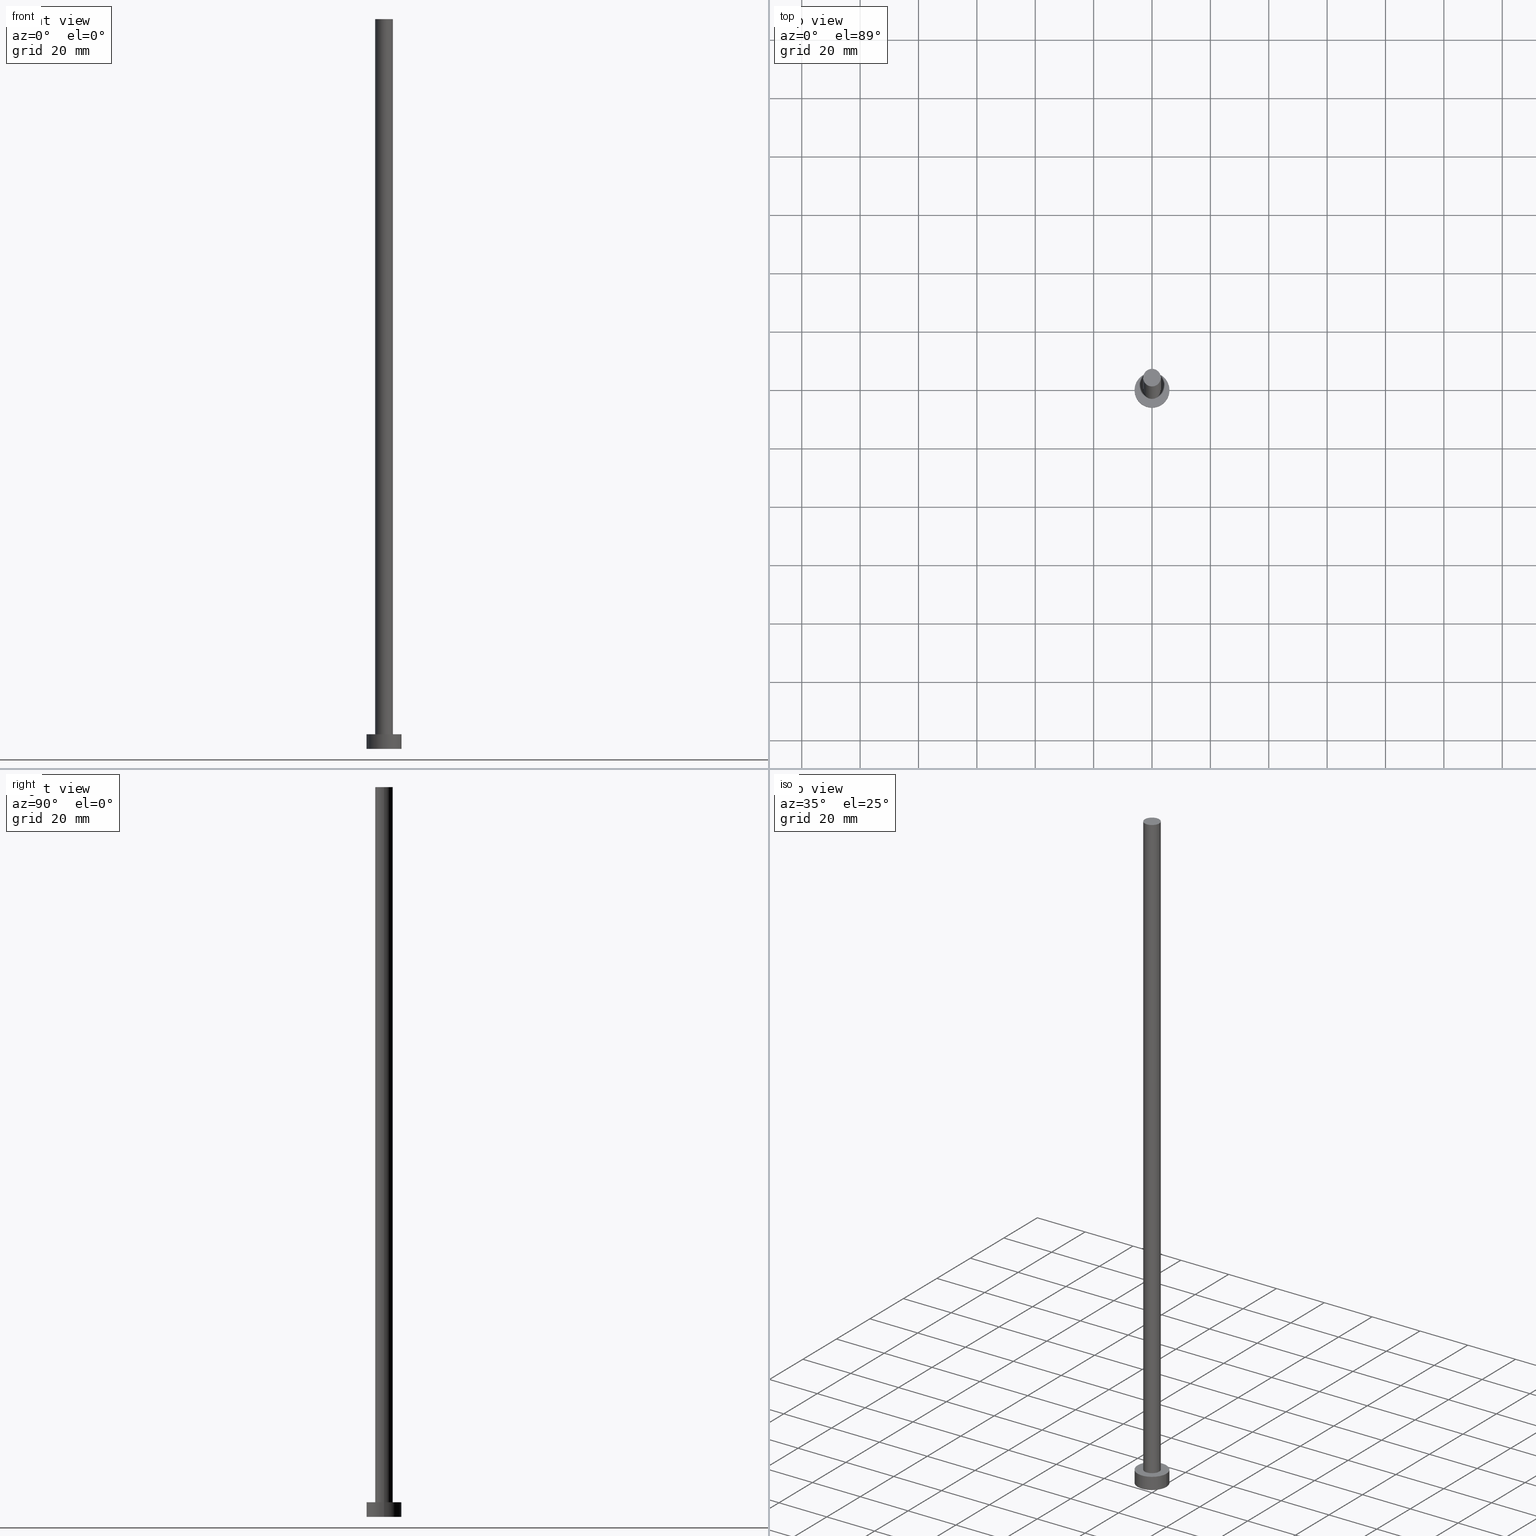
[diagram: canonical four-view strip — front | top / right | iso, engineering-drawing reading convention]
A machine part, canonical four-view strip (front | top / right | iso — engineering-drawing reading convention). The complete STEP part file that produces these views, byte-faithful:
ISO-10303-21;
HEADER;
FILE_DESCRIPTION (( 'STEP AP203' ),
    '1' );
FILE_NAME ('2932.STEP',
    '2023-05-24T12:27:54',
    ( '' ),
    ( '' ),
    'SwSTEP 2.0',
    'SolidWorks 2019',
    '' );
FILE_SCHEMA (( 'CONFIG_CONTROL_DESIGN' ));
ENDSEC;

DATA;
#1 = APPLICATION_CONTEXT ( 'configuration controlled 3d designs of mechanical parts and assemblies' ) ;
#2 = CC_DESIGN_APPROVAL ( #220, ( #169 ) ) ;
#3 = ORIENTED_EDGE ( 'NONE', *, *, #96, .T. ) ;
#4 = CC_DESIGN_PERSON_AND_ORGANIZATION_ASSIGNMENT ( #22, #144, ( #195 ) ) ;
#5 = CARTESIAN_POINT ( 'NONE',  ( 6.000000000000000888, 7.347880794884120722E-16, 5.000000000000000000 ) ) ;
#6 = ORIENTED_EDGE ( 'NONE', *, *, #96, .F. ) ;
#7 = DIRECTION ( 'NONE',  ( -0.000000000000000000, -0.000000000000000000, -1.000000000000000000 ) ) ;
#8 = AXIS2_PLACEMENT_3D ( 'NONE', #102, #225, #10 ) ;
#9 = EDGE_LOOP ( 'NONE', ( #105, #27 ) ) ;
#10 = DIRECTION ( 'NONE',  ( 1.000000000000000000, 0.000000000000000000, 0.000000000000000000 ) ) ;
#11 = DIRECTION ( 'NONE',  ( 1.000000000000000000, 0.000000000000000000, -0.000000000000000000 ) ) ;
#12 = EDGE_CURVE ( 'NONE', #204, #117, #61, .T. ) ;
#13 = EDGE_LOOP ( 'NONE', ( #246, #153 ) ) ;
#14 = FACE_OUTER_BOUND ( 'NONE', #221, .T. ) ;
#15 = DIRECTION ( 'NONE',  ( 1.000000000000000000, 0.000000000000000000, 0.000000000000000000 ) ) ;
#16 = CYLINDRICAL_SURFACE ( 'NONE', #151, 6.000000000000000888 ) ;
#17 = EDGE_CURVE ( 'NONE', #117, #204, #184, .T. ) ;
#18 = DATE_AND_TIME ( #209, #50 ) ;
#19 = VECTOR ( 'NONE', #251, 1000.000000000000000 ) ;
#20 = AXIS2_PLACEMENT_3D ( 'NONE', #85, #81, #68 ) ;
#21 = APPROVAL_STATUS ( 'not_yet_approved' ) ;
#22 = PERSON_AND_ORGANIZATION ( #183, #58 ) ;
#23 = ADVANCED_FACE ( 'NONE', ( #243 ), #67, .F. ) ;
#24 = EDGE_CURVE ( 'NONE', #204, #177, #31, .T. ) ;
#25 = ORIENTED_EDGE ( 'NONE', *, *, #152, .T. ) ;
#26 = CARTESIAN_POINT ( 'NONE',  ( 0.000000000000000000, 0.000000000000000000, 250.0000000000000000 ) ) ;
#27 = ORIENTED_EDGE ( 'NONE', *, *, #32, .F. ) ;
#28 = ORIENTED_EDGE ( 'NONE', *, *, #173, .F. ) ;
#29 = CIRCLE ( 'NONE', #168, 6.000000000000000888 ) ;
#30 =( GEOMETRIC_REPRESENTATION_CONTEXT ( 3 ) GLOBAL_UNCERTAINTY_ASSIGNED_CONTEXT ( ( #216 ) ) GLOBAL_UNIT_ASSIGNED_CONTEXT ( ( #51, #205, #35 ) ) REPRESENTATION_CONTEXT ( 'NONE', 'WORKASPACE' ) );
#31 = LINE ( 'NONE', #103, #248 ) ;
#32 = EDGE_CURVE ( 'NONE', #84, #82, #210, .T. ) ;
#33 = CARTESIAN_POINT ( 'NONE',  ( -6.000000000000000888, 0.000000000000000000, 5.000000000000000000 ) ) ;
#34 = ORIENTED_EDGE ( 'NONE', *, *, #230, .F. ) ;
#35 =( NAMED_UNIT ( * ) SI_UNIT ( $, .STERADIAN. ) SOLID_ANGLE_UNIT ( ) );
#36 = FACE_OUTER_BOUND ( 'NONE', #42, .T. ) ;
#37 = PERSON_AND_ORGANIZATION ( #183, #58 ) ;
#38 = DIRECTION ( 'NONE',  ( -0.000000000000000000, -0.000000000000000000, -1.000000000000000000 ) ) ;
#39 = CALENDAR_DATE ( 2023, 24, 5 ) ;
#40 = APPROVAL_ROLE ( '' ) ;
#41 = LOCAL_TIME ( 14, 27, 54.00000000000000000, #208 ) ;
#42 = EDGE_LOOP ( 'NONE', ( #48, #28, #181, #25 ) ) ;
#43 = CIRCLE ( 'NONE', #194, 6.000000000000000888 ) ;
#44 = FACE_OUTER_BOUND ( 'NONE', #223, .T. ) ;
#45 = ORIENTED_EDGE ( 'NONE', *, *, #92, .T. ) ;
#46 = CARTESIAN_POINT ( 'NONE',  ( -3.024999999999999911, 0.000000000000000000, 250.0000000000000000 ) ) ;
#47 = ORIENTED_EDGE ( 'NONE', *, *, #200, .T. ) ;
#48 = ORIENTED_EDGE ( 'NONE', *, *, #200, .F. ) ;
#49 = LINE ( 'NONE', #33, #98 ) ;
#50 = LOCAL_TIME ( 14, 27, 54.00000000000000000, #165 ) ;
#51 =( LENGTH_UNIT ( ) NAMED_UNIT ( * ) SI_UNIT ( .MILLI., .METRE. ) );
#52 = CYLINDRICAL_SURFACE ( 'NONE', #239, 3.024999999999999911 ) ;
#53 = DIRECTION ( 'NONE',  ( -0.000000000000000000, -0.000000000000000000, -1.000000000000000000 ) ) ;
#54 = SECURITY_CLASSIFICATION_LEVEL ( 'unclassified' ) ;
#55 = PRODUCT_DEFINITION_SHAPE ( 'NONE', 'NONE',  #195 ) ;
#56 = APPROVAL_STATUS ( 'not_yet_approved' ) ;
#57 = CLOSED_SHELL ( 'NONE', ( #131, #111, #235, #214, #23, #66, #179 ) ) ;
#58 = ORGANIZATION ( 'NEUR�EN�', 'NEUR�EN�', '' ) ;
#59 = ORIENTED_EDGE ( 'NONE', *, *, #17, .F. ) ;
#60 = CARTESIAN_POINT ( 'NONE',  ( 0.000000000000000000, 0.000000000000000000, 5.000000000000000000 ) ) ;
#61 = CIRCLE ( 'NONE', #146, 6.000000000000000888 ) ;
#62 = CARTESIAN_POINT ( 'NONE',  ( 0.000000000000000000, 0.000000000000000000, 250.0000000000000000 ) ) ;
#63 = CC_DESIGN_APPROVAL ( #191, ( #141 ) ) ;
#64 = ORIENTED_EDGE ( 'NONE', *, *, #173, .T. ) ;
#65 = CARTESIAN_POINT ( 'NONE',  ( 0.000000000000000000, 0.000000000000000000, 5.000000000000000000 ) ) ;
#66 = ADVANCED_FACE ( 'NONE', ( #36 ), #52, .T. ) ;
#67 = PLANE ( 'NONE',  #176 ) ;
#68 = DIRECTION ( 'NONE',  ( 1.000000000000000000, 0.000000000000000000, -0.000000000000000000 ) ) ;
#69 = DIRECTION ( 'NONE',  ( -1.000000000000000000, 0.000000000000000000, 0.000000000000000000 ) ) ;
#70 = CARTESIAN_POINT ( 'NONE',  ( 0.000000000000000000, 0.000000000000000000, 0.000000000000000000 ) ) ;
#71 = APPROVAL_ROLE ( '' ) ;
#72 = CARTESIAN_POINT ( 'NONE',  ( 0.000000000000000000, 0.000000000000000000, 250.0000000000000000 ) ) ;
#73 = APPLICATION_PROTOCOL_DEFINITION ( 'international standard', 'config_control_design', 1994, #1 ) ;
#74 = LINE ( 'NONE', #186, #19 ) ;
#75 = PERSON_AND_ORGANIZATION ( #183, #58 ) ;
#76 = APPROVAL_PERSON_ORGANIZATION ( #167, #191, #189 ) ;
#77 = DATE_TIME_ROLE ( 'creation_date' ) ;
#78 = CC_DESIGN_PERSON_AND_ORGANIZATION_ASSIGNMENT ( #115, #113, ( #141 ) ) ;
#79 = DATE_AND_TIME ( #147, #224 ) ;
#80 = ORIENTED_EDGE ( 'NONE', *, *, #230, .T. ) ;
#81 = DIRECTION ( 'NONE',  ( 0.000000000000000000, 0.000000000000000000, 1.000000000000000000 ) ) ;
#82 = VERTEX_POINT ( 'NONE', #249 ) ;
#83 = VERTEX_POINT ( 'NONE', #227 ) ;
#84 = VERTEX_POINT ( 'NONE', #182 ) ;
#85 = CARTESIAN_POINT ( 'NONE',  ( 0.000000000000000000, 0.000000000000000000, 5.000000000000000000 ) ) ;
#86 = DIRECTION ( 'NONE',  ( 1.000000000000000000, 0.000000000000000000, 0.000000000000000000 ) ) ;
#87 = AXIS2_PLACEMENT_3D ( 'NONE', #145, #197, #120 ) ;
#88 = DIRECTION ( 'NONE',  ( -1.000000000000000000, 0.000000000000000000, 0.000000000000000000 ) ) ;
#89 = DATE_AND_TIME ( #127, #178 ) ;
#90 = CARTESIAN_POINT ( 'NONE',  ( 0.000000000000000000, 0.000000000000000000, 0.000000000000000000 ) ) ;
#91 = DATE_TIME_ROLE ( 'classification_date' ) ;
#92 = EDGE_CURVE ( 'NONE', #218, #177, #29, .T. ) ;
#93 = PRODUCT ( '2932', '2932', '', ( #231 ) ) ;
#94 = AXIS2_PLACEMENT_3D ( 'NONE', #95, #107, #15 ) ;
#95 = CARTESIAN_POINT ( 'NONE',  ( 0.000000000000000000, 0.000000000000000000, 0.000000000000000000 ) ) ;
#96 = EDGE_CURVE ( 'NONE', #177, #218, #43, .T. ) ;
#97 = AXIS2_PLACEMENT_3D ( 'NONE', #101, #245, #11 ) ;
#98 = VECTOR ( 'NONE', #175, 1000.000000000000000 ) ;
#99 = CC_DESIGN_APPROVAL ( #240, ( #195 ) ) ;
#100 = DIRECTION ( 'NONE',  ( 1.000000000000000000, 0.000000000000000000, 0.000000000000000000 ) ) ;
#101 = CARTESIAN_POINT ( 'NONE',  ( 0.000000000000000000, 0.000000000000000000, 250.0000000000000000 ) ) ;
#102 = CARTESIAN_POINT ( 'NONE',  ( 0.000000000000000000, 0.000000000000000000, 5.000000000000000000 ) ) ;
#103 = CARTESIAN_POINT ( 'NONE',  ( 6.000000000000000888, 7.347880794884120722E-16, 5.000000000000000000 ) ) ;
#104 = CARTESIAN_POINT ( 'NONE',  ( 3.024999999999999911, 3.704556567420743261E-16, 250.0000000000000000 ) ) ;
#105 = ORIENTED_EDGE ( 'NONE', *, *, #152, .F. ) ;
#106 = DIRECTION ( 'NONE',  ( 0.000000000000000000, 0.000000000000000000, 1.000000000000000000 ) ) ;
#107 = DIRECTION ( 'NONE',  ( 0.000000000000000000, 0.000000000000000000, 1.000000000000000000 ) ) ;
#108 = APPROVAL_PERSON_ORGANIZATION ( #211, #220, #71 ) ;
#109 = DIRECTION ( 'NONE',  ( -1.000000000000000000, 0.000000000000000000, 0.000000000000000000 ) ) ;
#110 = DATE_AND_TIME ( #39, #41 ) ;
#111 = ADVANCED_FACE ( 'NONE', ( #14 ), #16, .T. ) ;
#112 = SHAPE_DEFINITION_REPRESENTATION ( #55, #134 ) ;
#113 = PERSON_AND_ORGANIZATION_ROLE ( 'classification_officer' ) ;
#114 = LOCAL_TIME ( 14, 27, 54.00000000000000000, #190 ) ;
#115 = PERSON_AND_ORGANIZATION ( #183, #58 ) ;
#116 = CC_DESIGN_PERSON_AND_ORGANIZATION_ASSIGNMENT ( #37, #253, ( #169 ) ) ;
#117 = VERTEX_POINT ( 'NONE', #206 ) ;
#118 = EDGE_CURVE ( 'NONE', #238, #82, #74, .T. ) ;
#119 = ORIENTED_EDGE ( 'NONE', *, *, #12, .F. ) ;
#120 = DIRECTION ( 'NONE',  ( -1.000000000000000000, 0.000000000000000000, 0.000000000000000000 ) ) ;
#121 = CIRCLE ( 'NONE', #132, 3.024999999999999911 ) ;
#122 = LINE ( 'NONE', #104, #242 ) ;
#123 = EDGE_LOOP ( 'NONE', ( #196, #6 ) ) ;
#124 = DIRECTION ( 'NONE',  ( 0.000000000000000000, 0.000000000000000000, 1.000000000000000000 ) ) ;
#125 = COORDINATED_UNIVERSAL_TIME_OFFSET ( 1, 0, .AHEAD. ) ;
#126 = DIRECTION ( 'NONE',  ( 1.000000000000000000, 0.000000000000000000, 0.000000000000000000 ) ) ;
#127 = CALENDAR_DATE ( 2023, 24, 5 ) ;
#128 = CIRCLE ( 'NONE', #192, 3.024999999999999911 ) ;
#129 = PRODUCT_RELATED_PRODUCT_CATEGORY ( 'detail', '', ( #93 ) ) ;
#130 = CALENDAR_DATE ( 2023, 24, 5 ) ;
#131 = ADVANCED_FACE ( 'NONE', ( #143 ), #207, .T. ) ;
#132 = AXIS2_PLACEMENT_3D ( 'NONE', #26, #161, #250 ) ;
#133 = ORIENTED_EDGE ( 'NONE', *, *, #32, .T. ) ;
#134 = ADVANCED_BREP_SHAPE_REPRESENTATION ( '2932', ( #232, #94 ), #30 ) ;
#135 = EDGE_CURVE ( 'NONE', #117, #218, #49, .T. ) ;
#136 = DIRECTION ( 'NONE',  ( 0.000000000000000000, 0.000000000000000000, 1.000000000000000000 ) ) ;
#137 = FACE_OUTER_BOUND ( 'NONE', #13, .T. ) ;
#138 = DIRECTION ( 'NONE',  ( 1.000000000000000000, 0.000000000000000000, -0.000000000000000000 ) ) ;
#139 = DIRECTION ( 'NONE',  ( 1.000000000000000000, 0.000000000000000000, 0.000000000000000000 ) ) ;
#140 = ORIENTED_EDGE ( 'NONE', *, *, #24, .F. ) ;
#141 = SECURITY_CLASSIFICATION ( '', '', #54 ) ;
#142 = DIRECTION ( 'NONE',  ( 1.000000000000000000, 0.000000000000000000, 0.000000000000000000 ) ) ;
#143 = FACE_OUTER_BOUND ( 'NONE', #174, .T. ) ;
#144 = PERSON_AND_ORGANIZATION_ROLE ( 'creator' ) ;
#145 = CARTESIAN_POINT ( 'NONE',  ( 0.000000000000000000, 0.000000000000000000, 250.0000000000000000 ) ) ;
#146 = AXIS2_PLACEMENT_3D ( 'NONE', #60, #157, #100 ) ;
#147 = CALENDAR_DATE ( 2023, 24, 5 ) ;
#148 = AXIS2_PLACEMENT_3D ( 'NONE', #65, #203, #69 ) ;
#149 = PERSON_AND_ORGANIZATION_ROLE ( 'design_owner' ) ;
#150 = APPLICATION_PROTOCOL_DEFINITION ( 'international standard', 'config_control_design', 1994, #244 ) ;
#151 = AXIS2_PLACEMENT_3D ( 'NONE', #163, #38, #109 ) ;
#152 = EDGE_CURVE ( 'NONE', #82, #84, #236, .T. ) ;
#153 = ORIENTED_EDGE ( 'NONE', *, *, #12, .T. ) ;
#154 = PLANE ( 'NONE',  #20 ) ;
#155 = DIRECTION ( 'NONE',  ( 0.000000000000000000, 0.000000000000000000, 1.000000000000000000 ) ) ;
#156 = CC_DESIGN_SECURITY_CLASSIFICATION ( #141, ( #169 ) ) ;
#157 = DIRECTION ( 'NONE',  ( 0.000000000000000000, 0.000000000000000000, 1.000000000000000000 ) ) ;
#158 = FACE_OUTER_BOUND ( 'NONE', #172, .T. ) ;
#159 = CC_DESIGN_PERSON_AND_ORGANIZATION_ASSIGNMENT ( #75, #233, ( #169 ) ) ;
#160 = ORIENTED_EDGE ( 'NONE', *, *, #24, .T. ) ;
#161 = DIRECTION ( 'NONE',  ( 0.000000000000000000, 0.000000000000000000, 1.000000000000000000 ) ) ;
#162 = DIRECTION ( 'NONE',  ( -0.000000000000000000, -0.000000000000000000, -1.000000000000000000 ) ) ;
#163 = CARTESIAN_POINT ( 'NONE',  ( 0.000000000000000000, 0.000000000000000000, 5.000000000000000000 ) ) ;
#164 = CC_DESIGN_DATE_AND_TIME_ASSIGNMENT ( #110, #91, ( #141 ) ) ;
#165 = COORDINATED_UNIVERSAL_TIME_OFFSET ( 1, 0, .AHEAD. ) ;
#166 = CARTESIAN_POINT ( 'NONE',  ( 0.000000000000000000, 0.000000000000000000, 5.000000000000000000 ) ) ;
#167 = PERSON_AND_ORGANIZATION ( #183, #58 ) ;
#168 = AXIS2_PLACEMENT_3D ( 'NONE', #70, #252, #226 ) ;
#169 = PRODUCT_DEFINITION_FORMATION_WITH_SPECIFIED_SOURCE ( 'LIBOVOLN�', '', #93, .NOT_KNOWN. ) ;
#170 = COORDINATED_UNIVERSAL_TIME_OFFSET ( 1, 0, .AHEAD. ) ;
#171 = PERSON_AND_ORGANIZATION ( #183, #58 ) ;
#172 = EDGE_LOOP ( 'NONE', ( #64, #80 ) ) ;
#173 = EDGE_CURVE ( 'NONE', #238, #83, #121, .T. ) ;
#174 = EDGE_LOOP ( 'NONE', ( #34, #47, #133, #215 ) ) ;
#175 = DIRECTION ( 'NONE',  ( -0.000000000000000000, -0.000000000000000000, -1.000000000000000000 ) ) ;
#176 = AXIS2_PLACEMENT_3D ( 'NONE', #199, #155, #138 ) ;
#177 = VERTEX_POINT ( 'NONE', #241 ) ;
#178 = LOCAL_TIME ( 14, 27, 54.00000000000000000, #125 ) ;
#179 = ADVANCED_FACE ( 'NONE', ( #158 ), #217, .T. ) ;
#180 = CARTESIAN_POINT ( 'NONE',  ( -6.000000000000000888, 0.000000000000000000, 0.000000000000000000 ) ) ;
#181 = ORIENTED_EDGE ( 'NONE', *, *, #118, .T. ) ;
#182 = CARTESIAN_POINT ( 'NONE',  ( 3.024999999999999911, 3.704556567420743261E-16, 5.000000000000000000 ) ) ;
#183 = PERSON ( 'NEUR�EN�', 'NEUR�EN�', 'NEUR�EN�', ('NEUR�EN�'), ('NEUR�EN�'), ('NEUR�EN�') ) ;
#184 = CIRCLE ( 'NONE', #234, 6.000000000000000888 ) ;
#185 = CC_DESIGN_PERSON_AND_ORGANIZATION_ASSIGNMENT ( #171, #149, ( #93 ) ) ;
#186 = CARTESIAN_POINT ( 'NONE',  ( -3.024999999999999911, 0.000000000000000000, 250.0000000000000000 ) ) ;
#187 = APPROVAL_STATUS ( 'not_yet_approved' ) ;
#188 = APPROVAL_DATE_TIME ( #89, #240 ) ;
#189 = APPROVAL_ROLE ( '' ) ;
#190 = COORDINATED_UNIVERSAL_TIME_OFFSET ( 1, 0, .AHEAD. ) ;
#191 = APPROVAL ( #21, 'NEUR�EN�' ) ;
#192 = AXIS2_PLACEMENT_3D ( 'NONE', #62, #219, #139 ) ;
#193 = DESIGN_CONTEXT ( 'detailed design', #1, 'design' ) ;
#194 = AXIS2_PLACEMENT_3D ( 'NONE', #90, #124, #126 ) ;
#195 = PRODUCT_DEFINITION ( 'NEZN�M�', '', #169, #193 ) ;
#196 = ORIENTED_EDGE ( 'NONE', *, *, #92, .F. ) ;
#197 = DIRECTION ( 'NONE',  ( -0.000000000000000000, -0.000000000000000000, -1.000000000000000000 ) ) ;
#198 = ORIENTED_EDGE ( 'NONE', *, *, #135, .T. ) ;
#199 = CARTESIAN_POINT ( 'NONE',  ( 0.000000000000000000, 0.000000000000000000, 0.000000000000000000 ) ) ;
#200 = EDGE_CURVE ( 'NONE', #83, #84, #122, .T. ) ;
#201 = CARTESIAN_POINT ( 'NONE',  ( 0.000000000000000000, 0.000000000000000000, 5.000000000000000000 ) ) ;
#202 = APPROVAL_PERSON_ORGANIZATION ( #254, #240, #40 ) ;
#203 = DIRECTION ( 'NONE',  ( -0.000000000000000000, -0.000000000000000000, -1.000000000000000000 ) ) ;
#204 = VERTEX_POINT ( 'NONE', #5 ) ;
#205 =( NAMED_UNIT ( * ) PLANE_ANGLE_UNIT ( ) SI_UNIT ( $, .RADIAN. ) );
#206 = CARTESIAN_POINT ( 'NONE',  ( -6.000000000000000888, 0.000000000000000000, 5.000000000000000000 ) ) ;
#207 = CYLINDRICAL_SURFACE ( 'NONE', #87, 3.024999999999999911 ) ;
#208 = COORDINATED_UNIVERSAL_TIME_OFFSET ( 1, 0, .AHEAD. ) ;
#209 = CALENDAR_DATE ( 2023, 24, 5 ) ;
#210 = CIRCLE ( 'NONE', #213, 3.024999999999999911 ) ;
#211 = PERSON_AND_ORGANIZATION ( #183, #58 ) ;
#212 = CC_DESIGN_DATE_AND_TIME_ASSIGNMENT ( #255, #77, ( #195 ) ) ;
#213 = AXIS2_PLACEMENT_3D ( 'NONE', #166, #106, #142 ) ;
#214 = ADVANCED_FACE ( 'NONE', ( #247, #137 ), #154, .T. ) ;
#215 = ORIENTED_EDGE ( 'NONE', *, *, #118, .F. ) ;
#216 = UNCERTAINTY_MEASURE_WITH_UNIT (LENGTH_MEASURE( 1.000000000000000082E-05 ), #51, 'distance_accuracy_value', 'NONE');
#217 = PLANE ( 'NONE',  #97 ) ;
#218 = VERTEX_POINT ( 'NONE', #180 ) ;
#219 = DIRECTION ( 'NONE',  ( 0.000000000000000000, 0.000000000000000000, 1.000000000000000000 ) ) ;
#220 = APPROVAL ( #187, 'NEUR�EN�' ) ;
#221 = EDGE_LOOP ( 'NONE', ( #119, #160, #3, #237 ) ) ;
#222 = CYLINDRICAL_SURFACE ( 'NONE', #148, 6.000000000000000888 ) ;
#223 = EDGE_LOOP ( 'NONE', ( #140, #59, #198, #45 ) ) ;
#224 = LOCAL_TIME ( 14, 27, 54.00000000000000000, #170 ) ;
#225 = DIRECTION ( 'NONE',  ( 0.000000000000000000, 0.000000000000000000, 1.000000000000000000 ) ) ;
#226 = DIRECTION ( 'NONE',  ( 1.000000000000000000, 0.000000000000000000, 0.000000000000000000 ) ) ;
#227 = CARTESIAN_POINT ( 'NONE',  ( 3.024999999999999911, 3.704556567420743261E-16, 250.0000000000000000 ) ) ;
#228 = APPROVAL_DATE_TIME ( #18, #220 ) ;
#229 = APPROVAL_DATE_TIME ( #79, #191 ) ;
#230 = EDGE_CURVE ( 'NONE', #83, #238, #128, .T. ) ;
#231 = MECHANICAL_CONTEXT ( 'NONE', #244, 'mechanical' ) ;
#232 = MANIFOLD_SOLID_BREP ( 'P�idat vysunut�m3', #57 ) ;
#233 = PERSON_AND_ORGANIZATION_ROLE ( 'creator' ) ;
#234 = AXIS2_PLACEMENT_3D ( 'NONE', #201, #136, #86 ) ;
#235 = ADVANCED_FACE ( 'NONE', ( #44 ), #222, .T. ) ;
#236 = CIRCLE ( 'NONE', #8, 3.024999999999999911 ) ;
#237 = ORIENTED_EDGE ( 'NONE', *, *, #135, .F. ) ;
#238 = VERTEX_POINT ( 'NONE', #46 ) ;
#239 = AXIS2_PLACEMENT_3D ( 'NONE', #72, #162, #88 ) ;
#240 = APPROVAL ( #56, 'NEUR�EN�' ) ;
#241 = CARTESIAN_POINT ( 'NONE',  ( 6.000000000000000888, 7.347880794884120722E-16, 0.000000000000000000 ) ) ;
#242 = VECTOR ( 'NONE', #7, 1000.000000000000000 ) ;
#243 = FACE_OUTER_BOUND ( 'NONE', #123, .T. ) ;
#244 = APPLICATION_CONTEXT ( 'configuration controlled 3d designs of mechanical parts and assemblies' ) ;
#245 = DIRECTION ( 'NONE',  ( 0.000000000000000000, 0.000000000000000000, 1.000000000000000000 ) ) ;
#246 = ORIENTED_EDGE ( 'NONE', *, *, #17, .T. ) ;
#247 = FACE_BOUND ( 'NONE', #9, .T. ) ;
#248 = VECTOR ( 'NONE', #53, 1000.000000000000000 ) ;
#249 = CARTESIAN_POINT ( 'NONE',  ( -3.024999999999999911, 0.000000000000000000, 5.000000000000000000 ) ) ;
#250 = DIRECTION ( 'NONE',  ( 1.000000000000000000, 0.000000000000000000, 0.000000000000000000 ) ) ;
#251 = DIRECTION ( 'NONE',  ( -0.000000000000000000, -0.000000000000000000, -1.000000000000000000 ) ) ;
#252 = DIRECTION ( 'NONE',  ( 0.000000000000000000, 0.000000000000000000, 1.000000000000000000 ) ) ;
#253 = PERSON_AND_ORGANIZATION_ROLE ( 'design_supplier' ) ;
#254 = PERSON_AND_ORGANIZATION ( #183, #58 ) ;
#255 = DATE_AND_TIME ( #130, #114 ) ;
ENDSEC;
END-ISO-10303-21;
